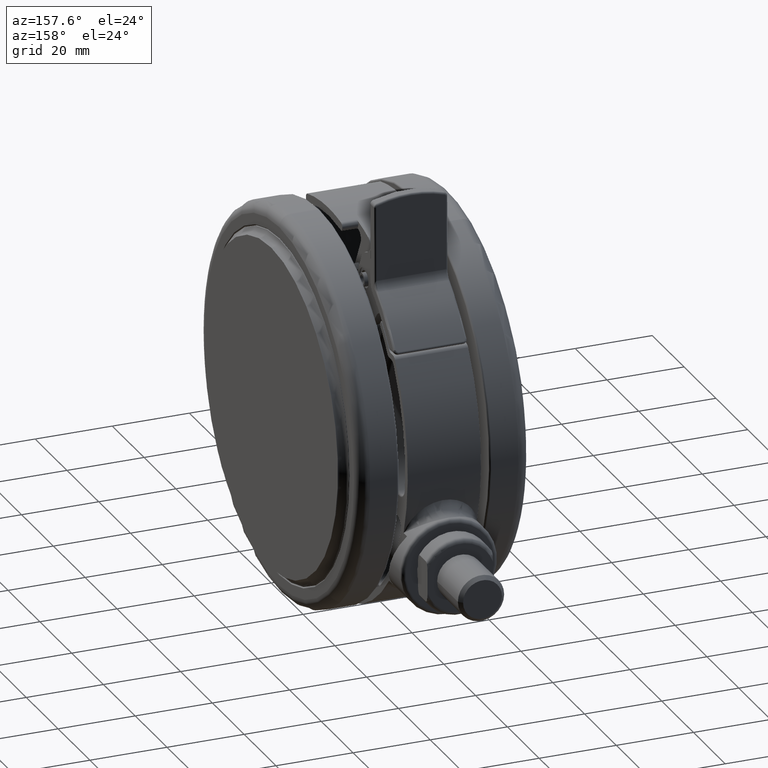
[diagram: clean part render]
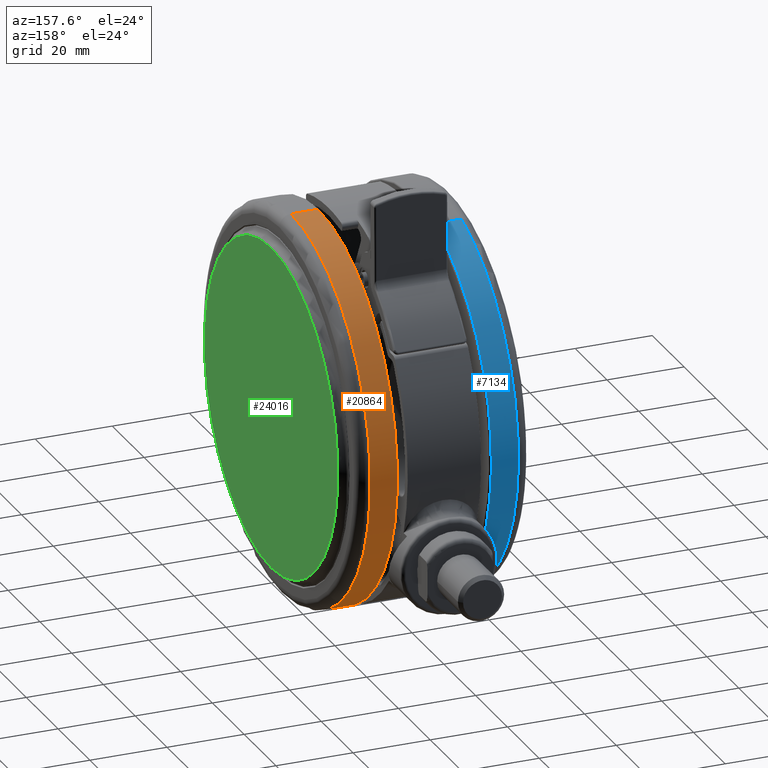
[diagram: same view with three faces highlighted in distinct colors, each labeled with its STEP entity id]
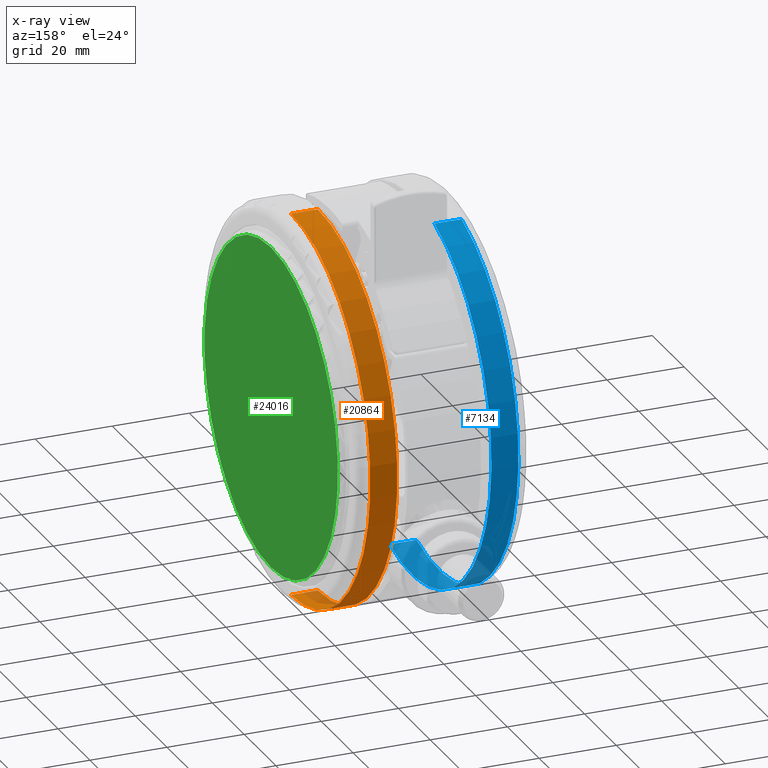
[diagram: x-ray of the same camera — body ghosted, the three highlighted faces saturated]
A machine part, auxiliary view with three faces highlighted in distinct colors.
The next image is the same camera in x-ray (body ghosted, the three faces saturated) — at least one of them is partly hidden behind the body in this view.
Their STEP definitions:

[orange] entity #20864 — the highlighted cylindrical surface (partial cylindrical patch) has radius 50 mm, axis along (1, -0, 0).
#2096 = DIRECTION ( 'NONE',  ( 2.126349141558171900E-017, 1.337754666183254700E-016, 1.000000000000000000 ) ) ;
#3528 = EDGE_CURVE ( 'NONE', #4427, #20453, #45199, .T. ) ;
#4427 = VERTEX_POINT ( 'NONE', #42636 ) ;
#6087 = CARTESIAN_POINT ( 'NONE',  ( 7.385703607767261200E-015, 1.355101900943022700E-013, 997.8999999999999800 ) ) ;
#6231 = AXIS2_PLACEMENT_3D ( 'NONE', #24704, #2096, #28496 ) ;
#7181 = AXIS2_PLACEMENT_3D ( 'NONE', #37421, #14832, #41205 ) ;
#10852 = CARTESIAN_POINT ( 'NONE',  ( -50.00000000000001400, -7.149177503914349500E-015, -12.09999999999993700 ) ) ;
#11966 = CIRCLE ( 'NONE', #7181, 50.00000000000000000 ) ;
#14234 = CARTESIAN_POINT ( 'NONE',  ( 49.99999999999998600, 8.879543389829747400E-015, -5.099999999999829100 ) ) ;
#14832 = DIRECTION ( 'NONE',  ( -2.126349141558171900E-017, -1.337754666183254700E-016, -1.000000000000000000 ) ) ;
#15668 = EDGE_LOOP ( 'NONE', ( #46937, #28110, #23590, #19670 ) ) ;
#16931 = CARTESIAN_POINT ( 'NONE',  ( 50.00000000000000700, 1.369331024122734100E-013, 997.8999999999999800 ) ) ;
#17535 = CYLINDRICAL_SURFACE ( 'NONE', #41839, 50.00000000000000000 ) ;
#17601 = CARTESIAN_POINT ( 'NONE',  ( -50.00000000000001400, -1.233598323332281900E-014, -5.099999999999827300 ) ) ;
#19670 = ORIENTED_EDGE ( 'NONE', *, *, #41402, .F. ) ;
#19874 = LINE ( 'NONE', #23093, #48773 ) ;
#20453 = VERTEX_POINT ( 'NONE', #14234 ) ;
#20864 = ADVANCED_FACE ( 'NONE', ( #28802 ), #17535, .T. ) ;
#23093 = CARTESIAN_POINT ( 'NONE',  ( -49.99999999999999300, 1.279640437805943800E-013, 997.8999999999999800 ) ) ;
#23590 = ORIENTED_EDGE ( 'NONE', *, *, #37766, .T. ) ;
#24163 = VERTEX_POINT ( 'NONE', #10852 ) ;
#24704 = CARTESIAN_POINT ( 'NONE',  ( -1.409042272197027600E-014, 3.969688097935522800E-016, -12.09999999999993900 ) ) ;
#24903 = DIRECTION ( 'NONE',  ( 2.126349141558171900E-017, 1.337754666183254700E-016, 1.000000000000000000 ) ) ;
#25164 = VECTOR ( 'NONE', #43332, 1000.000000000000000 ) ;
#28110 = ORIENTED_EDGE ( 'NONE', *, *, #3528, .T. ) ;
#28496 = DIRECTION ( 'NONE',  ( -1.000000000000000000, -1.509229262741580400E-016, 3.469446951953614200E-017 ) ) ;
#28697 = DIRECTION ( 'NONE',  ( -1.000000000000000000, -1.509229262741582600E-016, 0.0000000000000000000 ) ) ;
#28802 = FACE_OUTER_BOUND ( 'NONE', #15668, .T. ) ;
#31766 = VERTEX_POINT ( 'NONE', #17601 ) ;
#37421 = CARTESIAN_POINT ( 'NONE',  ( -1.394157828206119900E-014, 1.333397076121845300E-015, -5.099999999999828200 ) ) ;
#37766 = EDGE_CURVE ( 'NONE', #20453, #31766, #11966, .T. ) ;
#37880 = CIRCLE ( 'NONE', #6231, 50.00000000000000000 ) ;
#38117 = EDGE_CURVE ( 'NONE', #24163, #4427, #37880, .T. ) ;
#41205 = DIRECTION ( 'NONE',  ( 1.000000000000000000, 1.509229262741580400E-016, -1.734723475976807100E-017 ) ) ;
#41402 = EDGE_CURVE ( 'NONE', #24163, #31766, #19874, .T. ) ;
#41839 = AXIS2_PLACEMENT_3D ( 'NONE', #6087, #24903, #28697 ) ;
#42636 = CARTESIAN_POINT ( 'NONE',  ( 49.99999999999998600, 2.288095260928841000E-015, -12.09999999999994100 ) ) ;
#43332 = DIRECTION ( 'NONE',  ( 2.126349141558171900E-017, 1.337754666183254700E-016, 1.000000000000000000 ) ) ;
#45199 = LINE ( 'NONE', #16931, #25164 ) ;
#45658 = DIRECTION ( 'NONE',  ( 2.126349141558171900E-017, 1.337754666183254700E-016, 1.000000000000000000 ) ) ;
#46937 = ORIENTED_EDGE ( 'NONE', *, *, #38117, .T. ) ;
#48773 = VECTOR ( 'NONE', #45658, 1000.000000000000000 ) ;

[blue] entity #7134 — the highlighted cylindrical surface (partial cylindrical patch) has radius 50 mm, axis along (-1, 0, -0).
#702 = DIRECTION ( 'NONE',  ( -3.380642383533773200E-017, -2.202247500052102700E-016, -1.000000000000000000 ) ) ;
#845 = DIRECTION ( 'NONE',  ( -0.9587657712597809100, 0.2841974592789973700, 0.0000000000000000000 ) ) ;
#1558 = CIRCLE ( 'NONE', #15926, 50.00000000000000700 ) ;
#6465 = VERTEX_POINT ( 'NONE', #23974 ) ;
#7134 = ADVANCED_FACE ( 'NONE', ( #14838 ), #13681, .T. ) ;
#9984 = CARTESIAN_POINT ( 'NONE',  ( -47.93828856298907200, 14.20987296394963400, -1046.500000000000000 ) ) ;
#10154 = ORIENTED_EDGE ( 'NONE', *, *, #17988, .T. ) ;
#10723 = CARTESIAN_POINT ( 'NONE',  ( 1.421585204616783600E-014, -6.471369879831932500E-015, -36.49999999999994300 ) ) ;
#11756 = EDGE_CURVE ( 'NONE', #26801, #39846, #1558, .T. ) ;
#13681 = CYLINDRICAL_SURFACE ( 'NONE', #23035, 50.00000000000000700 ) ;
#14498 = DIRECTION ( 'NONE',  ( 0.9587657712597809100, -0.2841974592789973700, 0.0000000000000000000 ) ) ;
#14838 = FACE_OUTER_BOUND ( 'NONE', #42371, .T. ) ;
#15916 = CARTESIAN_POINT ( 'NONE',  ( -1.992863602752327400E-014, -2.288983673850943100E-013, -1046.500000000000000 ) ) ;
#15926 = AXIS2_PLACEMENT_3D ( 'NONE', #10723, #37076, #14498 ) ;
#17669 = VECTOR ( 'NONE', #702, 1000.000000000000000 ) ;
#17988 = EDGE_CURVE ( 'NONE', #39846, #6465, #48452, .T. ) ;
#20156 = VERTEX_POINT ( 'NONE', #42599 ) ;
#21749 = EDGE_CURVE ( 'NONE', #26801, #20156, #38948, .T. ) ;
#23035 = AXIS2_PLACEMENT_3D ( 'NONE', #15916, #38511, #42294 ) ;
#23450 = ORIENTED_EDGE ( 'NONE', *, *, #21749, .F. ) ;
#23480 = DIRECTION ( 'NONE',  ( 3.380642383533773200E-017, 2.202247500052102700E-016, 1.000000000000000000 ) ) ;
#23662 = CIRCLE ( 'NONE', #28703, 50.00000000000000700 ) ;
#23974 = CARTESIAN_POINT ( 'NONE',  ( -47.93828856298903700, 14.20987296394985900, -43.50000000000005000 ) ) ;
#25473 = CARTESIAN_POINT ( 'NONE',  ( 47.93828856298906500, -14.20987296394987700, -36.49999999999994300 ) ) ;
#26801 = VERTEX_POINT ( 'NONE', #25473 ) ;
#27225 = VECTOR ( 'NONE', #28773, 1000.000000000000000 ) ;
#28703 = AXIS2_PLACEMENT_3D ( 'NONE', #46040, #23480, #845 ) ;
#28773 = DIRECTION ( 'NONE',  ( -3.380642383533773200E-017, -2.202247500052102700E-016, -1.000000000000000000 ) ) ;
#31347 = CARTESIAN_POINT ( 'NONE',  ( -47.93828856298903700, 14.20987296394985600, -36.49999999999994300 ) ) ;
#31517 = ORIENTED_EDGE ( 'NONE', *, *, #38972, .T. ) ;
#37076 = DIRECTION ( 'NONE',  ( -3.380642383533773200E-017, -2.202247500052102700E-016, -1.000000000000000000 ) ) ;
#38511 = DIRECTION ( 'NONE',  ( -3.380642383533773200E-017, -2.202247500052102700E-016, -1.000000000000000000 ) ) ;
#38948 = LINE ( 'NONE', #45900, #17669 ) ;
#38972 = EDGE_CURVE ( 'NONE', #6465, #20156, #23662, .T. ) ;
#39846 = VERTEX_POINT ( 'NONE', #31347 ) ;
#42294 = DIRECTION ( 'NONE',  ( 0.9587657712597809100, -0.2841974592789973700, 0.0000000000000000000 ) ) ;
#42371 = EDGE_LOOP ( 'NONE', ( #47150, #10154, #31517, #23450 ) ) ;
#42599 = CARTESIAN_POINT ( 'NONE',  ( 47.93828856298906500, -14.20987296394988400, -43.50000000000005000 ) ) ;
#45900 = CARTESIAN_POINT ( 'NONE',  ( 47.93828856298903000, -14.20987296395009900, -1046.500000000000000 ) ) ;
#46040 = CARTESIAN_POINT ( 'NONE',  ( 1.397920707932046400E-014, -8.012943129868428100E-015, -43.50000000000005000 ) ) ;
#47150 = ORIENTED_EDGE ( 'NONE', *, *, #11756, .T. ) ;
#48452 = LINE ( 'NONE', #9984, #27225 ) ;

[green] entity #24016 — the highlighted planar face has unit normal (-1, -0, 0).
#2264 = DIRECTION ( 'NONE',  ( 0.0000000000000000000, 0.0000000000000000000, -1.000000000000000000 ) ) ;
#4070 = CARTESIAN_POINT ( 'NONE',  ( 0.0000000000000000000, 0.0000000000000000000, 0.0000000000000000000 ) ) ;
#4830 = CARTESIAN_POINT ( 'NONE',  ( 0.0000000000000000000, 0.0000000000000000000, 0.0000000000000000000 ) ) ;
#6844 = AXIS2_PLACEMENT_3D ( 'NONE', #4830, #31255, #8642 ) ;
#7891 = DIRECTION ( 'NONE',  ( 1.000000000000000000, 0.0000000000000000000, 0.0000000000000000000 ) ) ;
#8642 = DIRECTION ( 'NONE',  ( 1.000000000000000000, 0.0000000000000000000, 0.0000000000000000000 ) ) ;
#12969 = AXIS2_PLACEMENT_3D ( 'NONE', #4070, #30489, #7891 ) ;
#13349 = CARTESIAN_POINT ( 'NONE',  ( 0.0000000000000000000, 0.0000000000000000000, 0.0000000000000000000 ) ) ;
#13642 = EDGE_LOOP ( 'NONE', ( #35391, #42128 ) ) ;
#13750 = CARTESIAN_POINT ( 'NONE',  ( -42.00000000000000000, 5.143516556418883300E-015, 0.0000000000000000000 ) ) ;
#16713 = AXIS2_PLACEMENT_3D ( 'NONE', #13349, #2264, #28672 ) ;
#20064 = CIRCLE ( 'NONE', #12969, 42.00000000000000000 ) ;
#24016 = ADVANCED_FACE ( 'NONE', ( #45804 ), #47447, .F. ) ;
#25085 = VERTEX_POINT ( 'NONE', #32816 ) ;
#28672 = DIRECTION ( 'NONE',  ( -1.000000000000000000, 0.0000000000000000000, 0.0000000000000000000 ) ) ;
#29688 = EDGE_CURVE ( 'NONE', #25085, #35755, #32609, .T. ) ;
#30489 = DIRECTION ( 'NONE',  ( 0.0000000000000000000, 0.0000000000000000000, 1.000000000000000000 ) ) ;
#31255 = DIRECTION ( 'NONE',  ( 0.0000000000000000000, 0.0000000000000000000, 1.000000000000000000 ) ) ;
#32609 = CIRCLE ( 'NONE', #6844, 42.00000000000000000 ) ;
#32816 = CARTESIAN_POINT ( 'NONE',  ( 42.00000000000000000, 0.0000000000000000000, 0.0000000000000000000 ) ) ;
#35391 = ORIENTED_EDGE ( 'NONE', *, *, #29688, .T. ) ;
#35755 = VERTEX_POINT ( 'NONE', #13750 ) ;
#40207 = EDGE_CURVE ( 'NONE', #35755, #25085, #20064, .T. ) ;
#42128 = ORIENTED_EDGE ( 'NONE', *, *, #40207, .T. ) ;
#45804 = FACE_OUTER_BOUND ( 'NONE', #13642, .T. ) ;
#47447 = PLANE ( 'NONE',  #16713 ) ;